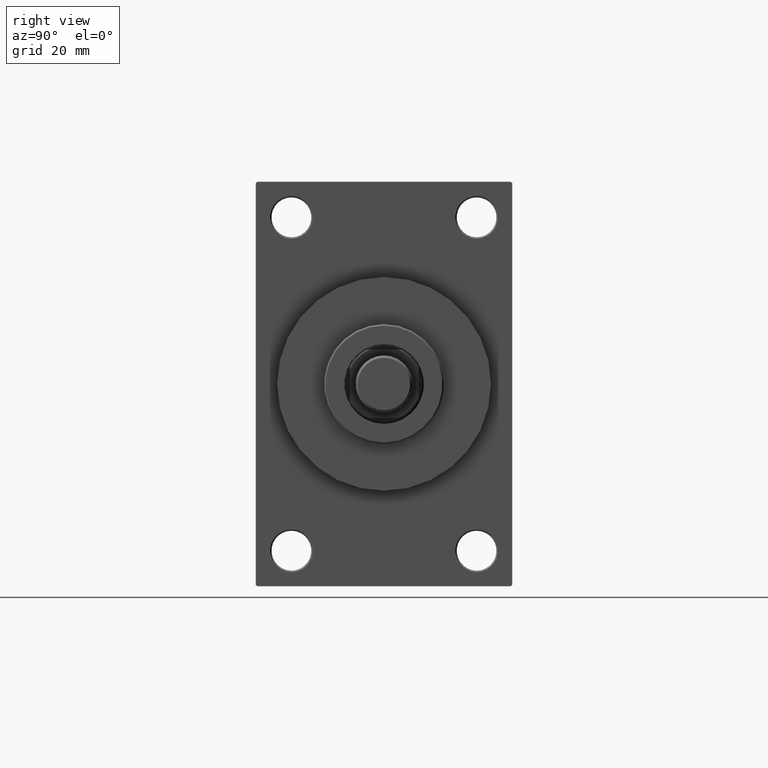
[diagram: clean part render]
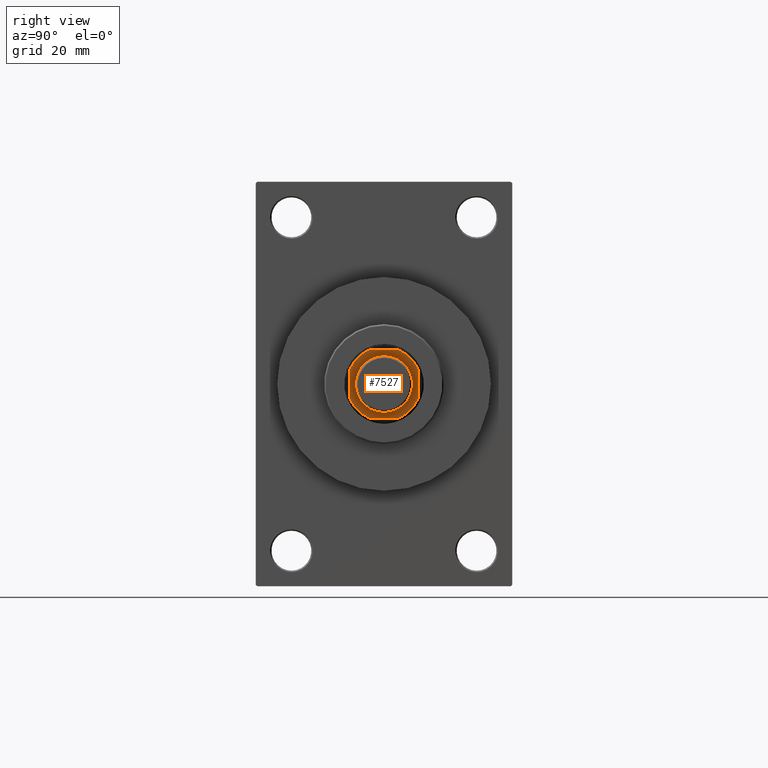
[diagram: same view with one face highlighted and labeled with its STEP entity id]
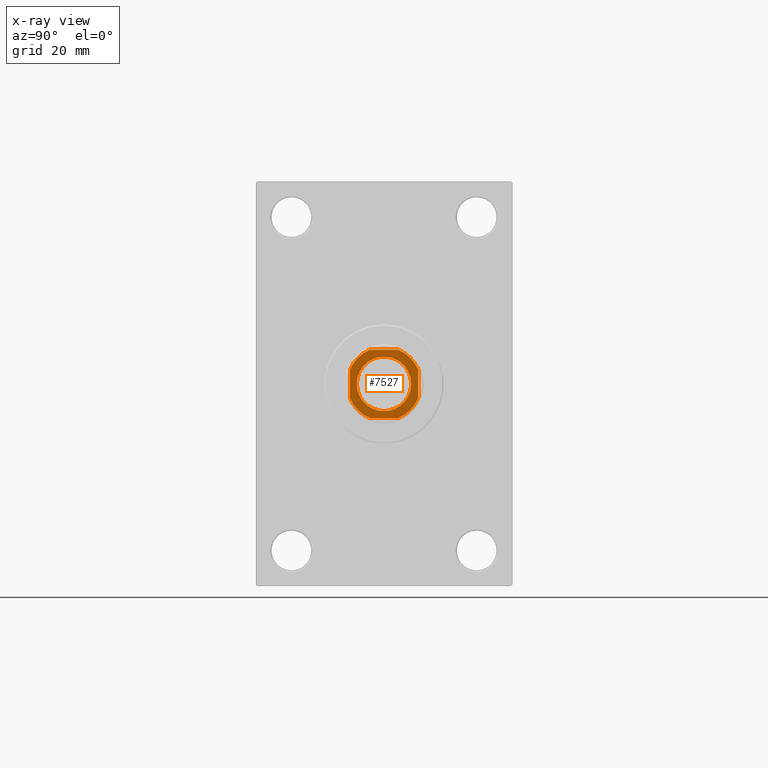
[diagram: x-ray of the same camera — body ghosted, the highlighted face saturated]
A machine part, right view. The second image highlights one B-rep face of the part: STEP entity #7527.
The next image is the same camera in x-ray: the body ghosted, the highlighted face saturated — about 0% of this face is hidden behind the body in this view.
In plain terms, the highlighted planar face has unit normal (1, 0, 0).
Its self-contained STEP definition (entity closure, byte-faithful):
#80 = CARTESIAN_POINT ( 'NONE',  ( -9.550000000000002487, 1.169537693185722558E-15, 112.9999999999999858 ) ) ;
#475 = CARTESIAN_POINT ( 'NONE',  ( 0.000000000000000000, 0.000000000000000000, 112.9999999999999858 ) ) ;
#1127 = CARTESIAN_POINT ( 'NONE',  ( 9.550000000000002487, 0.000000000000000000, 112.9999999999999858 ) ) ;
#2244 = EDGE_CURVE ( 'NONE', #46565, #19761, #23343, .T. ) ;
#2971 = ORIENTED_EDGE ( 'NONE', *, *, #4890, .T. ) ;
#3140 = DIRECTION ( 'NONE',  ( 0.000000000000000000, -0.000000000000000000, -1.000000000000000000 ) ) ;
#3276 = DIRECTION ( 'NONE',  ( -0.000000000000000000, 0.000000000000000000, 1.000000000000000000 ) ) ;
#3404 = CIRCLE ( 'NONE', #4162, 12.99999999999999112 ) ;
#3599 = ORIENTED_EDGE ( 'NONE', *, *, #15558, .T. ) ;
#4162 = AXIS2_PLACEMENT_3D ( 'NONE', #33998, #11337, #26058 ) ;
#4191 = ORIENTED_EDGE ( 'NONE', *, *, #2244, .T. ) ;
#4207 = CARTESIAN_POINT ( 'NONE',  ( 0.000000000000000000, 0.000000000000000000, 112.9999999999999858 ) ) ;
#4441 = DIRECTION ( 'NONE',  ( -0.000000000000000000, 0.000000000000000000, 1.000000000000000000 ) ) ;
#4890 = EDGE_CURVE ( 'NONE', #44158, #33372, #9646, .T. ) ;
#6501 = AXIS2_PLACEMENT_3D ( 'NONE', #16837, #35635, #38770 ) ;
#7527 = ADVANCED_FACE ( 'NONE', ( #13643, #17269 ), #24752, .T. ) ;
#7727 = DIRECTION ( 'NONE',  ( -1.000000000000000000, -0.000000000000000000, -0.000000000000000000 ) ) ;
#7860 = VERTEX_POINT ( 'NONE', #80 ) ;
#8434 = EDGE_CURVE ( 'NONE', #19150, #42221, #38986, .T. ) ;
#9460 = EDGE_LOOP ( 'NONE', ( #4191, #17296, #11648, #10196, #10472, #35437, #2971, #23395 ) ) ;
#9551 = DIRECTION ( 'NONE',  ( 1.000000000000000000, 0.000000000000000000, 0.000000000000000000 ) ) ;
#9646 = LINE ( 'NONE', #20504, #16548 ) ;
#9841 = VERTEX_POINT ( 'NONE', #23609 ) ;
#10196 = ORIENTED_EDGE ( 'NONE', *, *, #8434, .T. ) ;
#10472 = ORIENTED_EDGE ( 'NONE', *, *, #11681, .T. ) ;
#11332 = LINE ( 'NONE', #40523, #35314 ) ;
#11337 = DIRECTION ( 'NONE',  ( -0.000000000000000000, 0.000000000000000000, 1.000000000000000000 ) ) ;
#11516 = CARTESIAN_POINT ( 'NONE',  ( 0.000000000000000000, 0.000000000000000000, 112.9999999999999858 ) ) ;
#11648 = ORIENTED_EDGE ( 'NONE', *, *, #12836, .T. ) ;
#11681 = EDGE_CURVE ( 'NONE', #42221, #9841, #18387, .T. ) ;
#11855 = CIRCLE ( 'NONE', #6501, 12.99999999999999289 ) ;
#12299 = AXIS2_PLACEMENT_3D ( 'NONE', #4207, #4441, #19388 ) ;
#12468 = CARTESIAN_POINT ( 'NONE',  ( 11.99999999999999645, 11.99999999999999645, 112.9999999999999858 ) ) ;
#12836 = EDGE_CURVE ( 'NONE', #33801, #19150, #11332, .T. ) ;
#13643 = FACE_BOUND ( 'NONE', #23355, .T. ) ;
#13644 = CARTESIAN_POINT ( 'NONE',  ( -4.999999999999971578, -12.00000000000000355, 112.9999999999999858 ) ) ;
#15558 = EDGE_CURVE ( 'NONE', #7860, #29298, #45229, .T. ) ;
#16548 = VECTOR ( 'NONE', #38819, 1000.000000000000000 ) ;
#16837 = CARTESIAN_POINT ( 'NONE',  ( 0.000000000000000000, 0.000000000000000000, 112.9999999999999858 ) ) ;
#17189 = CARTESIAN_POINT ( 'NONE',  ( 4.999999999999984013, 11.99999999999999645, 112.9999999999999858 ) ) ;
#17265 = DIRECTION ( 'NONE',  ( 0.000000000000000000, -0.000000000000000000, -1.000000000000000000 ) ) ;
#17269 = FACE_OUTER_BOUND ( 'NONE', #9460, .T. ) ;
#17296 = ORIENTED_EDGE ( 'NONE', *, *, #31123, .T. ) ;
#17543 = VECTOR ( 'NONE', #26099, 1000.000000000000000 ) ;
#18322 = DIRECTION ( 'NONE',  ( 1.000000000000000000, 0.000000000000000000, 0.000000000000000000 ) ) ;
#18387 = LINE ( 'NONE', #33098, #17543 ) ;
#18998 = DIRECTION ( 'NONE',  ( -0.000000000000000000, 0.000000000000000000, 1.000000000000000000 ) ) ;
#19150 = VERTEX_POINT ( 'NONE', #46357 ) ;
#19388 = DIRECTION ( 'NONE',  ( 1.000000000000000000, 0.000000000000000000, 0.000000000000000000 ) ) ;
#19761 = VERTEX_POINT ( 'NONE', #47006 ) ;
#20472 = EDGE_CURVE ( 'NONE', #33372, #46565, #33102, .T. ) ;
#20504 = CARTESIAN_POINT ( 'NONE',  ( -11.99999999999999822, -12.00000000000000355, 112.9999999999999858 ) ) ;
#20823 = CARTESIAN_POINT ( 'NONE',  ( -12.00000000000000000, 5.000000000000031086, 112.9999999999999858 ) ) ;
#23343 = LINE ( 'NONE', #12468, #44923 ) ;
#23355 = EDGE_LOOP ( 'NONE', ( #30333, #3599 ) ) ;
#23395 = ORIENTED_EDGE ( 'NONE', *, *, #20472, .T. ) ;
#23609 = CARTESIAN_POINT ( 'NONE',  ( -12.00000000000000000, -4.999999999999980460, 112.9999999999999858 ) ) ;
#24752 = PLANE ( 'NONE',  #30476 ) ;
#24906 = CARTESIAN_POINT ( 'NONE',  ( 12.00000000000000178, -4.999999999999976907, 112.9999999999999858 ) ) ;
#24974 = CARTESIAN_POINT ( 'NONE',  ( 0.000000000000000000, 0.000000000000000000, 112.9999999999999858 ) ) ;
#25905 = AXIS2_PLACEMENT_3D ( 'NONE', #24974, #17265, #28817 ) ;
#26058 = DIRECTION ( 'NONE',  ( 1.000000000000000000, 0.000000000000000000, 0.000000000000000000 ) ) ;
#26099 = DIRECTION ( 'NONE',  ( 7.228014483236695816E-17, -1.000000000000000000, 0.000000000000000000 ) ) ;
#28230 = EDGE_CURVE ( 'NONE', #9841, #44158, #11855, .T. ) ;
#28817 = DIRECTION ( 'NONE',  ( 1.000000000000000000, 0.000000000000000000, 0.000000000000000000 ) ) ;
#29298 = VERTEX_POINT ( 'NONE', #1127 ) ;
#30320 = DIRECTION ( 'NONE',  ( -2.891205793294678326E-16, 1.000000000000000000, -0.000000000000000000 ) ) ;
#30333 = ORIENTED_EDGE ( 'NONE', *, *, #37030, .T. ) ;
#30476 = AXIS2_PLACEMENT_3D ( 'NONE', #36313, #3276, #9551 ) ;
#31123 = EDGE_CURVE ( 'NONE', #19761, #33801, #3404, .T. ) ;
#33098 = CARTESIAN_POINT ( 'NONE',  ( -12.00000000000000000, 11.99999999999999645, 112.9999999999999858 ) ) ;
#33102 = CIRCLE ( 'NONE', #12299, 12.99999999999999289 ) ;
#33372 = VERTEX_POINT ( 'NONE', #46278 ) ;
#33801 = VERTEX_POINT ( 'NONE', #17189 ) ;
#33998 = CARTESIAN_POINT ( 'NONE',  ( 0.000000000000000000, 0.000000000000000000, 112.9999999999999858 ) ) ;
#35314 = VECTOR ( 'NONE', #7727, 1000.000000000000000 ) ;
#35437 = ORIENTED_EDGE ( 'NONE', *, *, #28230, .T. ) ;
#35635 = DIRECTION ( 'NONE',  ( -0.000000000000000000, 0.000000000000000000, 1.000000000000000000 ) ) ;
#35920 = CIRCLE ( 'NONE', #25905, 9.550000000000002487 ) ;
#36313 = CARTESIAN_POINT ( 'NONE',  ( 0.000000000000000000, 0.000000000000000000, 112.9999999999999858 ) ) ;
#36792 = AXIS2_PLACEMENT_3D ( 'NONE', #475, #3140, #18322 ) ;
#37030 = EDGE_CURVE ( 'NONE', #29298, #7860, #35920, .T. ) ;
#38770 = DIRECTION ( 'NONE',  ( 1.000000000000000000, 0.000000000000000000, 0.000000000000000000 ) ) ;
#38819 = DIRECTION ( 'NONE',  ( 1.000000000000000000, 0.000000000000000000, 0.000000000000000000 ) ) ;
#38986 = CIRCLE ( 'NONE', #45922, 13.00000000000001066 ) ;
#40523 = CARTESIAN_POINT ( 'NONE',  ( -12.00000000000000000, 11.99999999999999645, 112.9999999999999858 ) ) ;
#41171 = DIRECTION ( 'NONE',  ( 1.000000000000000000, 0.000000000000000000, 0.000000000000000000 ) ) ;
#42221 = VERTEX_POINT ( 'NONE', #20823 ) ;
#44158 = VERTEX_POINT ( 'NONE', #13644 ) ;
#44923 = VECTOR ( 'NONE', #30320, 1000.000000000000000 ) ;
#45229 = CIRCLE ( 'NONE', #36792, 9.550000000000002487 ) ;
#45922 = AXIS2_PLACEMENT_3D ( 'NONE', #11516, #18998, #41171 ) ;
#46278 = CARTESIAN_POINT ( 'NONE',  ( 4.999999999999971578, -12.00000000000000355, 112.9999999999999858 ) ) ;
#46357 = CARTESIAN_POINT ( 'NONE',  ( -5.000000000000039080, 11.99999999999999645, 112.9999999999999858 ) ) ;
#46565 = VERTEX_POINT ( 'NONE', #24906 ) ;
#47006 = CARTESIAN_POINT ( 'NONE',  ( 11.99999999999999822, 4.999999999999980460, 112.9999999999999858 ) ) ;